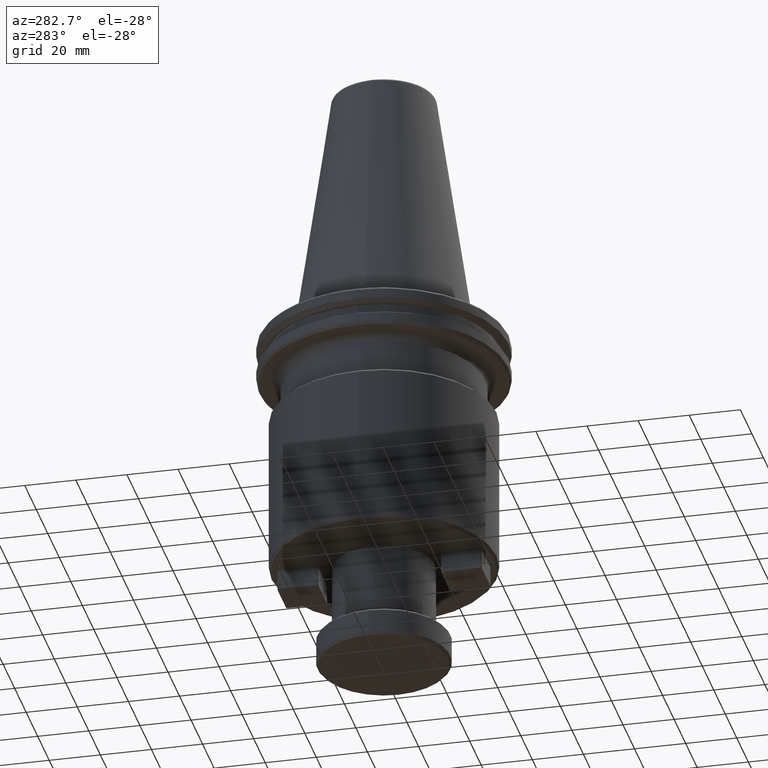
[diagram: clean part render]
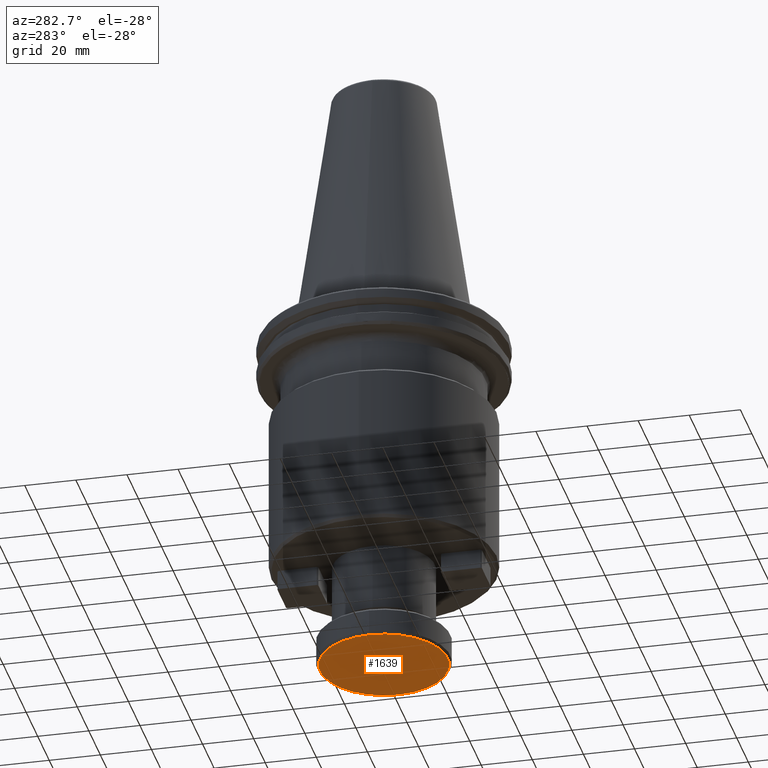
[diagram: same view with one face highlighted and labeled with its STEP entity id]
A machine part, auxiliary view. The second image highlights one B-rep face of the part: STEP entity #1639.
In plain terms, the highlighted planar face has unit normal (0, 0, -1).
Its self-contained STEP definition (entity closure, byte-faithful):
#335 = DIRECTION ( 'NONE',  ( 0.0000000000000000000, 0.0000000000000000000, 1.000000000000000000 ) ) ;
#349 = CARTESIAN_POINT ( 'NONE',  ( 25.00000000000000400, 0.0000000000000000000, -141.0000000000000000 ) ) ;
#466 = ORIENTED_EDGE ( 'NONE', *, *, #3671, .F. ) ;
#839 = CIRCLE ( 'NONE', #2725, 25.00000000000000400 ) ;
#1060 = DIRECTION ( 'NONE',  ( 0.0000000000000000000, 0.0000000000000000000, 1.000000000000000000 ) ) ;
#1289 = AXIS2_PLACEMENT_3D ( 'NONE', #2826, #335, #2917 ) ;
#1305 = DIRECTION ( 'NONE',  ( -1.000000000000000000, 0.0000000000000000000, -0.0000000000000000000 ) ) ;
#1316 = DIRECTION ( 'NONE',  ( 0.0000000000000000000, 0.0000000000000000000, -1.000000000000000000 ) ) ;
#1480 = CARTESIAN_POINT ( 'NONE',  ( 0.0000000000000000000, -25.00000000000000000, -141.0000000000000000 ) ) ;
#1639 = ADVANCED_FACE ( 'NONE', ( #4040 ), #1836, .T. ) ;
#1836 = PLANE ( 'NONE',  #4303 ) ;
#2282 = VERTEX_POINT ( 'NONE', #2536 ) ;
#2310 = ORIENTED_EDGE ( 'NONE', *, *, #3580, .F. ) ;
#2536 = CARTESIAN_POINT ( 'NONE',  ( -25.00000000000000400, 3.122849337825751000E-015, -141.0000000000000000 ) ) ;
#2675 = VERTEX_POINT ( 'NONE', #349 ) ;
#2725 = AXIS2_PLACEMENT_3D ( 'NONE', #3561, #1060, #3891 ) ;
#2736 = CIRCLE ( 'NONE', #1289, 25.00000000000000400 ) ;
#2826 = CARTESIAN_POINT ( 'NONE',  ( 0.0000000000000000000, 0.0000000000000000000, -141.0000000000000000 ) ) ;
#2917 = DIRECTION ( 'NONE',  ( 1.000000000000000000, 0.0000000000000000000, 0.0000000000000000000 ) ) ;
#3561 = CARTESIAN_POINT ( 'NONE',  ( 0.0000000000000000000, 0.0000000000000000000, -141.0000000000000000 ) ) ;
#3580 = EDGE_CURVE ( 'NONE', #2282, #2675, #2736, .T. ) ;
#3671 = EDGE_CURVE ( 'NONE', #2675, #2282, #839, .T. ) ;
#3891 = DIRECTION ( 'NONE',  ( 1.000000000000000000, 0.0000000000000000000, 0.0000000000000000000 ) ) ;
#4040 = FACE_OUTER_BOUND ( 'NONE', #4944, .T. ) ;
#4303 = AXIS2_PLACEMENT_3D ( 'NONE', #1480, #1316, #1305 ) ;
#4944 = EDGE_LOOP ( 'NONE', ( #466, #2310 ) ) ;